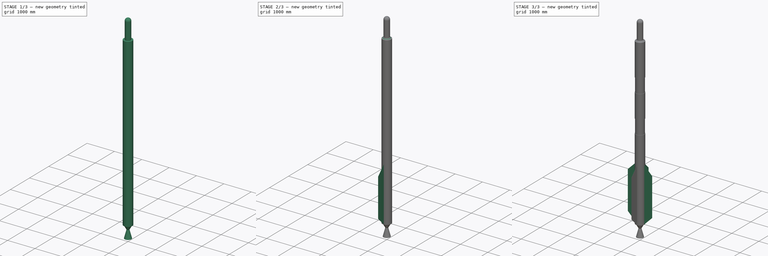
[diagram: build sequence overview — one tinted view per stage of 3, left to right]
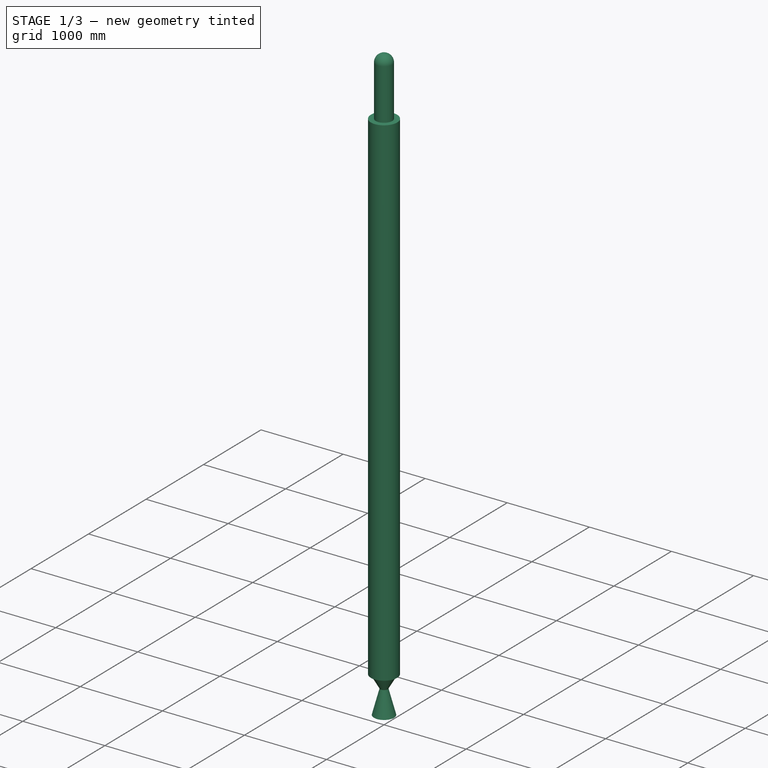
[diagram: stage 1 of 3 — iso view after this stage's code; geometry added in this stage tinted green]
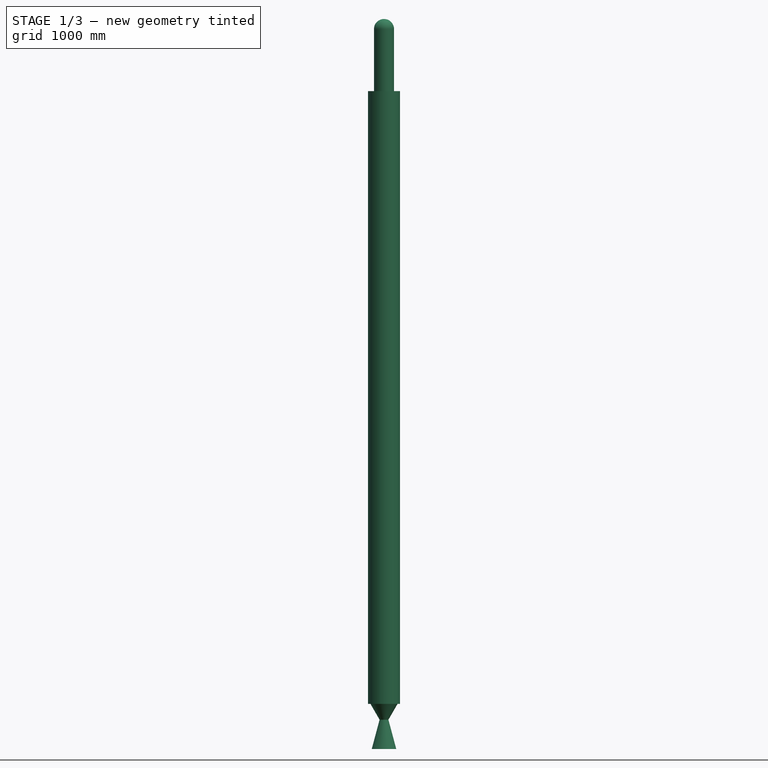
[diagram: stage 1 of 3 — front view after this stage's code; geometry added in this stage tinted green]
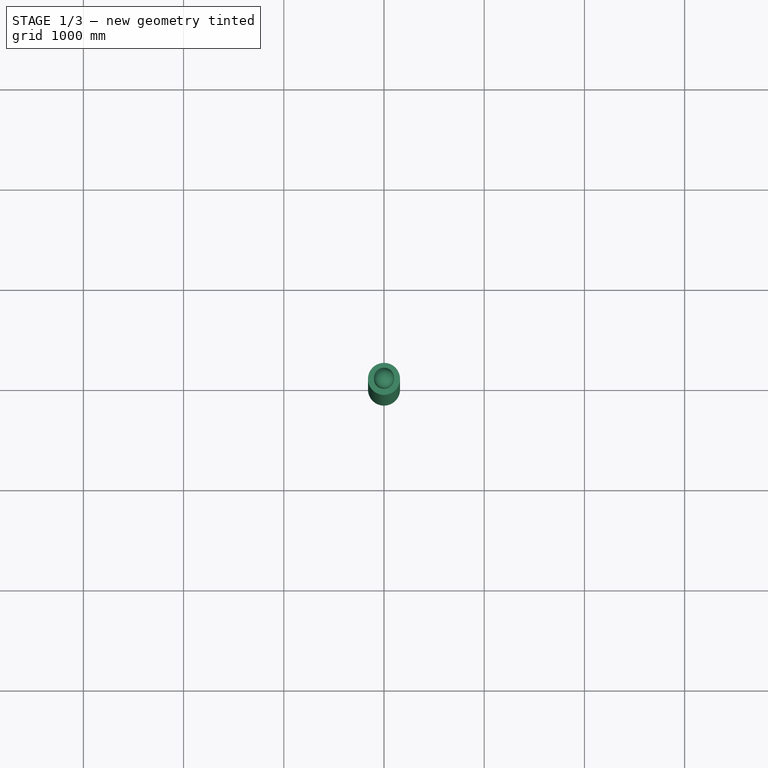
[diagram: stage 1 of 3 — top view after this stage's code; geometry added in this stage tinted green]
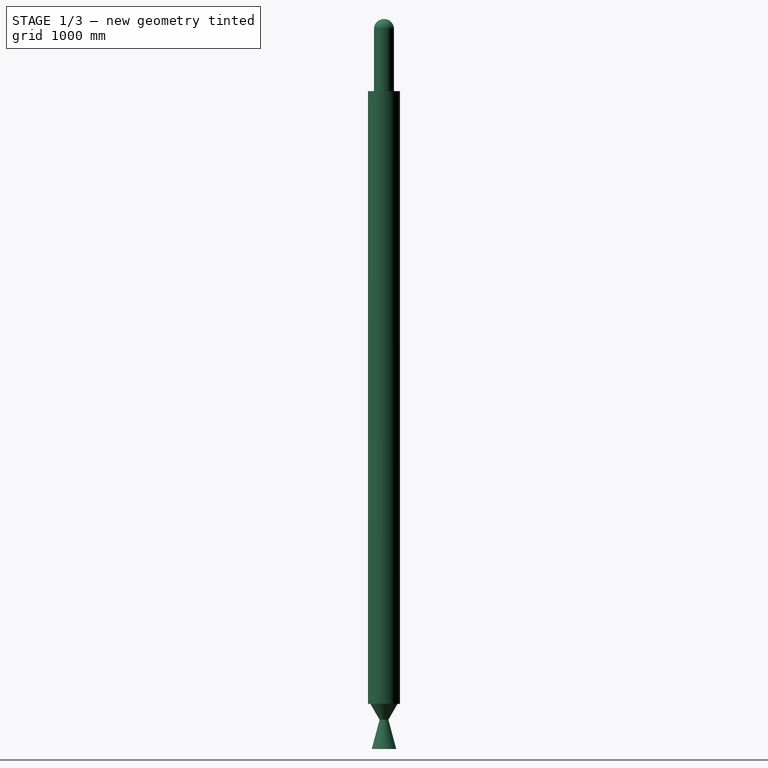
[diagram: stage 1 of 3 — right view after this stage's code; geometry added in this stage tinted green]
FCSTD DOCUMENT  (FreeCAD 0.18R16085 (Git))
Label: Body2
License: All rights reserved
LicenseURL: http://en.wikipedia.org/wiki/All_rights_reserved
objects: Sketcher::SketchObject×6, PartDesign::Pad×2, PartDesign::Revolution×2, PartDesign::Plane×2, PartDesign::Pocket×2, PartDesign::Chamfer×1, PartDesign::PolarPattern×1, PartDesign::MultiTransform×1, PartDesign::Body×1
note: 24 computed .brp shape members not serialized (recipe doc carries the construction recipe); baked Part::Feature solids carry a one-line shape summary decoded from their .brp

FEATURE [Sketcher::SketchObject] Sketch
  MapMode = 5
  Support = -> [XY_Plane]
  sketch-geometry (1):
    g0: Circle CenterX=0 CenterY=0 CenterZ=0 NormalX=0 NormalY=0 NormalZ=1 AngleXU=0 Radius=160
  constraints (2):
    c: Coincident(g-1,g0)
    c: Radius(g0) = 160
FEATURE [PartDesign::Pad] Pad
  Length = 6115
  Length2 = 100
  Profile = -> Sketch
  Refine = true
  Type = 0
FEATURE [Sketcher::SketchObject] Sketch001
  ExternalGeometry = -> [Pad]
  MapMode = 5
  Placement = pos=(0,0,0) rot=(1,0,0;1.5708rad)
  Support = -> [XZ_Plane]
  sketch-geometry (6):
    g0: ArcOfCircle CenterX=0 CenterY=6735 CenterZ=0 NormalX=0 NormalY=0 NormalZ=1 AngleXU=0 Radius=100 StartAngle=1.5708 EndAngle=3.14159
    g1: LineSegment [constr] StartX=0 StartY=6735 StartZ=0 EndX=-100 EndY=6735 EndZ=0
    g2: LineSegment StartX=-100 StartY=6735 StartZ=0 EndX=-100 EndY=6115 EndZ=0
    g3: LineSegment StartX=-100 StartY=6115 StartZ=0 EndX=0 EndY=6115 EndZ=0
    g4: LineSegment StartX=0 StartY=6115 StartZ=0 EndX=0 EndY=6735 EndZ=0
    g5: LineSegment StartX=6.1e-15 StartY=6835 StartZ=0 EndX=0 EndY=6735 EndZ=0
  constraints (18):
    c: Coincident(g1,g2)
    c: Coincident(g2,g3)
    c: Coincident(g3,g4)
    c: Coincident(g4,g1)
    c: Horizontal(g1)
    c: Horizontal(g3)
    c: Vertical(g2)
    c: Vertical(g4)
    c: Coincident(g1,g0)
    c: Tangent(g0,g2)
    c: PointOnObject(g0,g-2)
    c: Radius(g0) = 100
    c: PointOnObject(g2,g-3)
    c: PointOnObject(g1,g-2)
    c: Coincident(g5,g0)
    c: Coincident(g5,g4)
    c: Distance(g0,g-3) = 720
    c: PointOnObject(g0,g4)
FEATURE [PartDesign::Revolution] Revolution
  Angle = 360
  Axis = (0,2e-16,1)
  Base = (0,0,0)
  BaseFeature = -> Pad
  Profile = -> Sketch001
  ReferenceAxis = -> Sketch001 [V_Axis]
  Refine = true
FEATURE [Sketcher::SketchObject] Sketch002
  MapMode = 5
  Placement = pos=(0,0,0) rot=(0.57735,0.57735,0.57735;2.0944rad)
  Support = -> [YZ_Plane]
  sketch-geometry (5):
    g0: LineSegment StartX=-135 StartY=0 StartZ=0 EndX=-44 EndY=-157.617 EndZ=0
    g1: LineSegment StartX=-44 StartY=-157.617 StartZ=0 EndX=-122.344 EndY=-450 EndZ=0
    g2: LineSegment StartX=-122.344 StartY=-450 StartZ=0 EndX=0 EndY=-450 EndZ=0
    g3: LineSegment StartX=0 StartY=-450 StartZ=0 EndX=0 EndY=0 EndZ=0
    g4: LineSegment StartX=0 StartY=0 StartZ=0 EndX=-135 EndY=0 EndZ=0
  constraints (14):
    c: Horizontal(g4)
    c: Coincident(g4,g3)
    c: Coincident(g4,g0)
    c: Coincident(g0,g1)
    c: Horizontal(g2)
    c: Coincident(g2,g3)
    c: Coincident(g1,g2)
    c: Vertical(g3)
    c: Coincident(g3,g-1)
    c: Angle(g0,g4) = 1.0472
    c: Angle(g1,g3) = 0.261799
    c: Distance(g4) = 135
    c: Distance(g3) = 450
    c: Distance(g0,g3) = 44
FEATURE [PartDesign::Revolution] Revolution001
  Angle = 360
  Axis = (-2e-16,3e-16,1)
  Base = (0,0,0)
  BaseFeature = -> Revolution
  Profile = -> Sketch002
  ReferenceAxis = -> Sketch002 [V_Axis]
  Refine = true
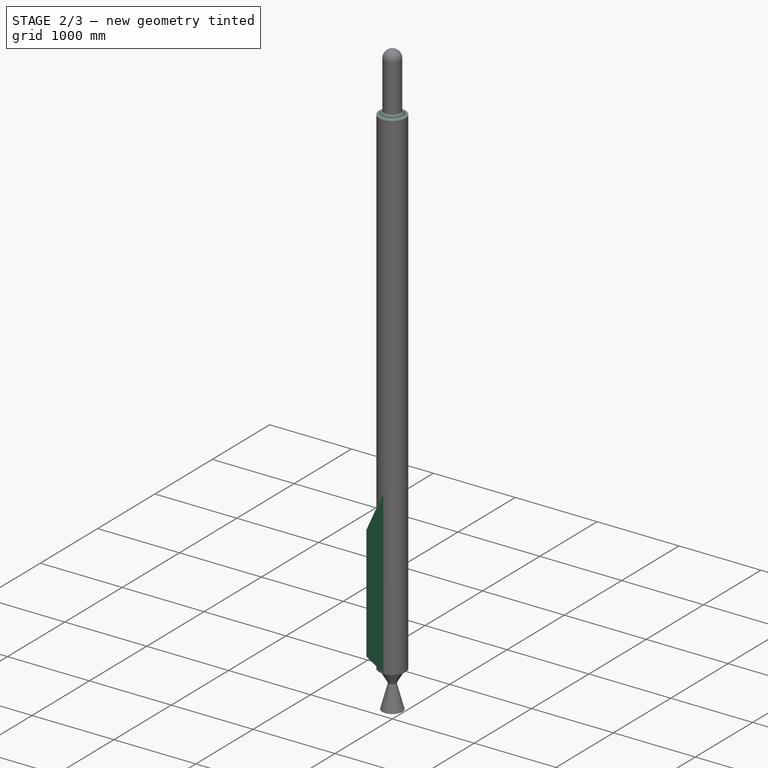
[diagram: stage 2 of 3 — iso view after this stage's code; geometry added in this stage tinted green]
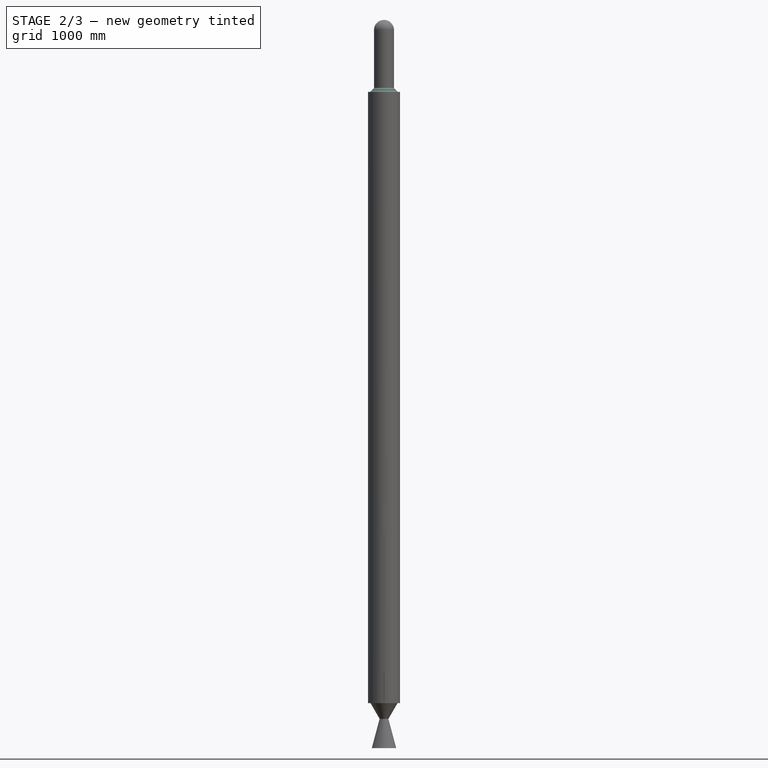
[diagram: stage 2 of 3 — front view after this stage's code; geometry added in this stage tinted green]
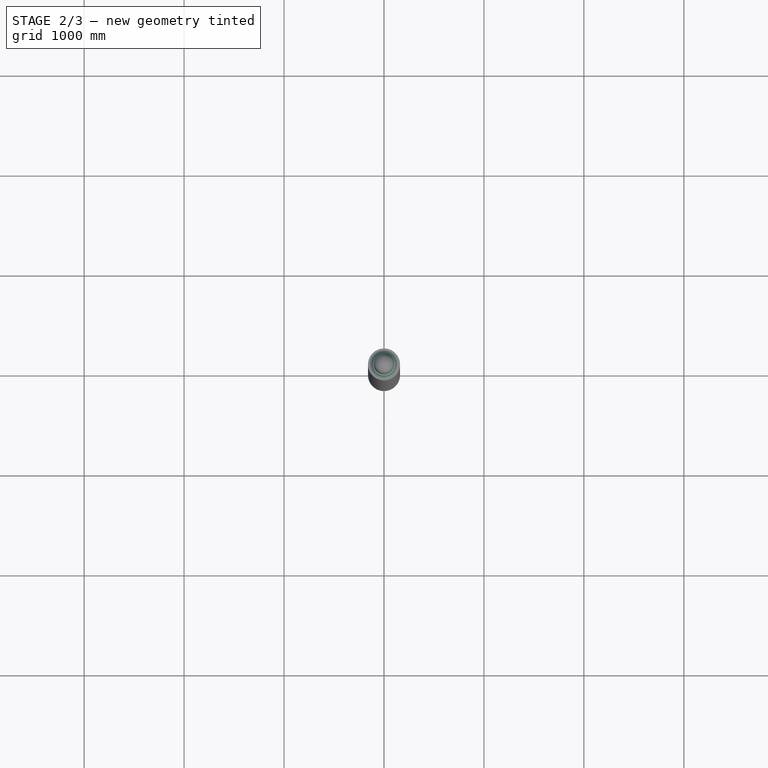
[diagram: stage 2 of 3 — top view after this stage's code; geometry added in this stage tinted green]
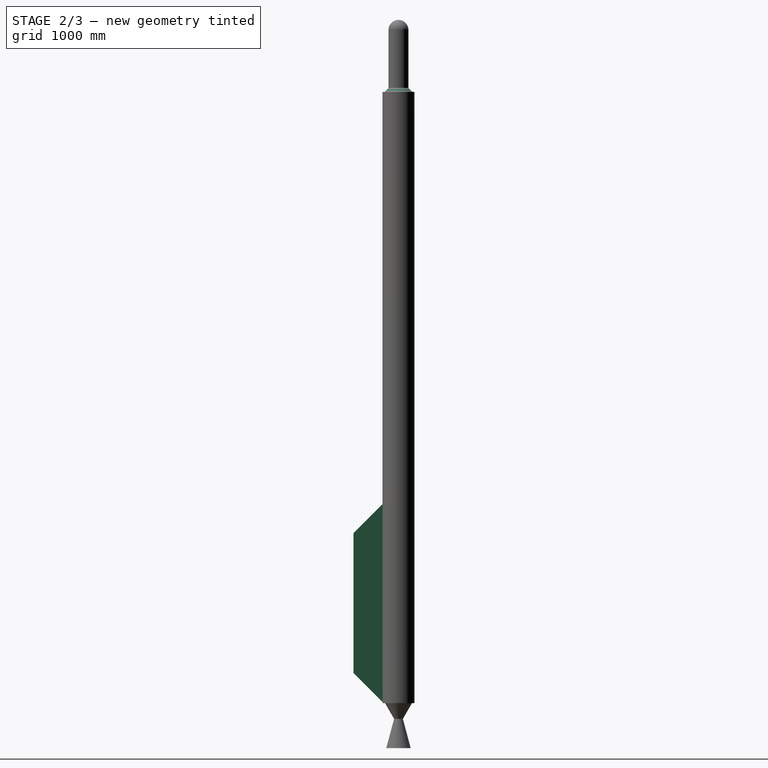
[diagram: stage 2 of 3 — right view after this stage's code; geometry added in this stage tinted green]
FEATURE [PartDesign::Chamfer] Chamfer
  Base = -> Revolution001 [Edge5]
  BaseFeature = -> Revolution001
  Size = 40
FEATURE [Sketcher::SketchObject] Sketch003
  ExternalGeometry = -> [Chamfer]
  MapMode = 5
  Placement = pos=(0,0,0) rot=(0.57735,0.57735,0.57735;2.0944rad)
  Support = -> [YZ_Plane]
  sketch-geometry (7):
    g0: LineSegment [constr] StartX=-450 StartY=2000 StartZ=0 EndX=-150 EndY=2000 EndZ=0
    g1: LineSegment StartX=-150 StartY=2000 StartZ=0 EndX=-150 EndY=0 EndZ=0
    g2: LineSegment [constr] StartX=-150 StartY=-4.16e-14 StartZ=0 EndX=-450 EndY=-4.16e-14 EndZ=0
    g3: LineSegment [constr] StartX=-450 StartY=-4.16e-14 StartZ=0 EndX=-450 EndY=2000 EndZ=0
    g4: LineSegment StartX=-150 StartY=2000 StartZ=0 EndX=-450 EndY=1700 EndZ=0
    g5: LineSegment StartX=-150 StartY=-4.16e-14 StartZ=0 EndX=-450 EndY=300 EndZ=0
    g6: LineSegment StartX=-450 StartY=1700 StartZ=0 EndX=-450 EndY=300 EndZ=0
  constraints (20):
    c: Coincident(g0,g1)
    c: Coincident(g1,g2)
    c: Coincident(g2,g3)
    c: Coincident(g3,g0)
    c: Horizontal(g0)
    c: Horizontal(g2)
    c: Vertical(g1)
    c: Vertical(g3)
    c: Distance(g3) = 2000
    c: Distance(g0) = 300
    c: PointOnObject(g1,g-3)
    c: Distance(g1,g-4) = 150
    c: Vertical(g6)
    c: Coincident(g4,g1)
    c: PointOnObject(g4,g3)
    c: Distance(g4,g0) = 300
    c: Coincident(g5,g1)
    c: Distance(g5,g2) = 300
    c: Coincident(g6,g4)
    c: Coincident(g6,g5)
FEATURE [PartDesign::Pad] Pad001
  BaseFeature = -> Chamfer
  Length = 2
  Length2 = 100
  Midplane = true
  Profile = -> Sketch003
  Refine = true
  Type = 0
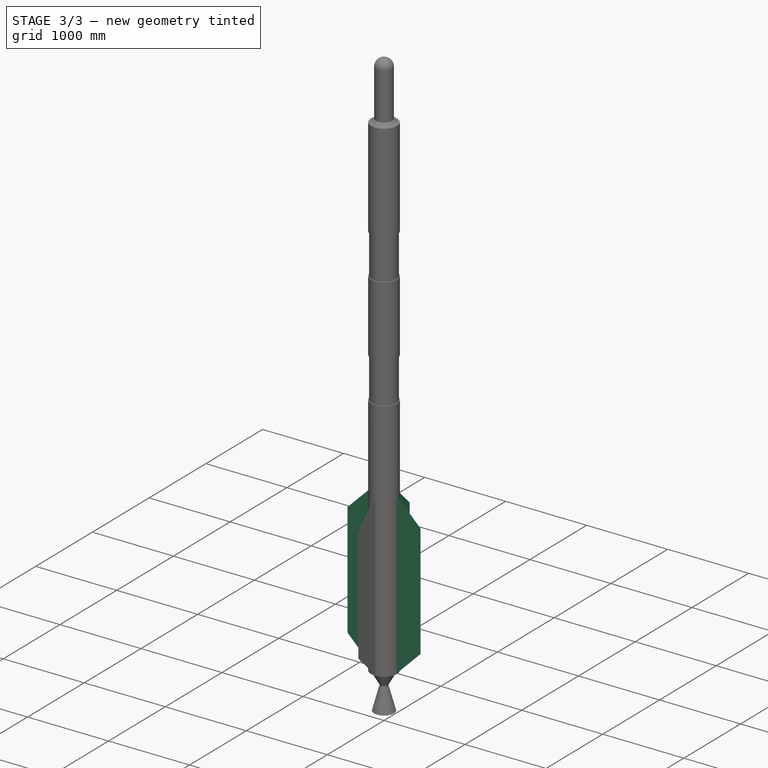
[diagram: stage 3 of 3 — iso view after this stage's code; geometry added in this stage tinted green]
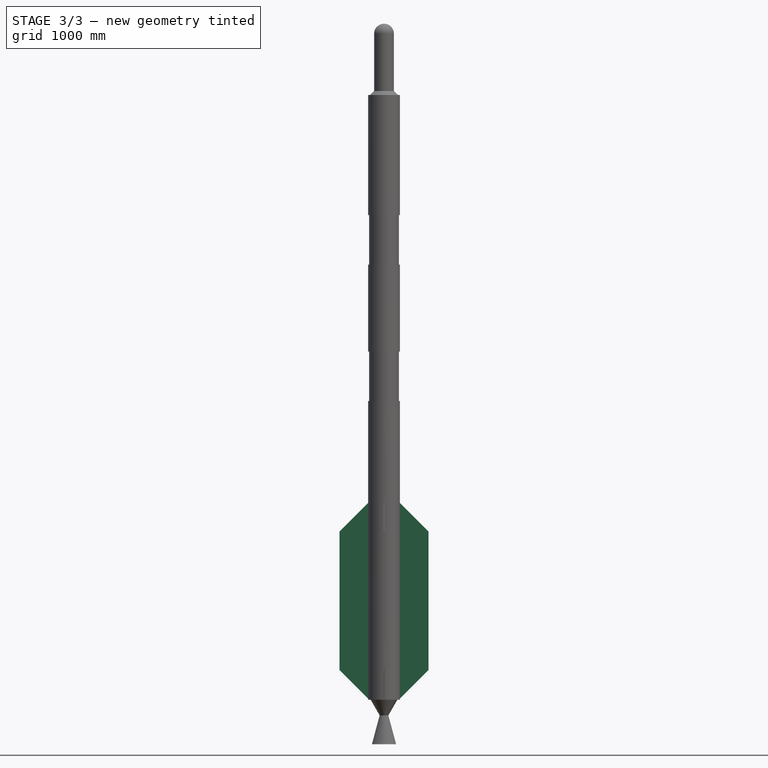
[diagram: stage 3 of 3 — front view after this stage's code; geometry added in this stage tinted green]
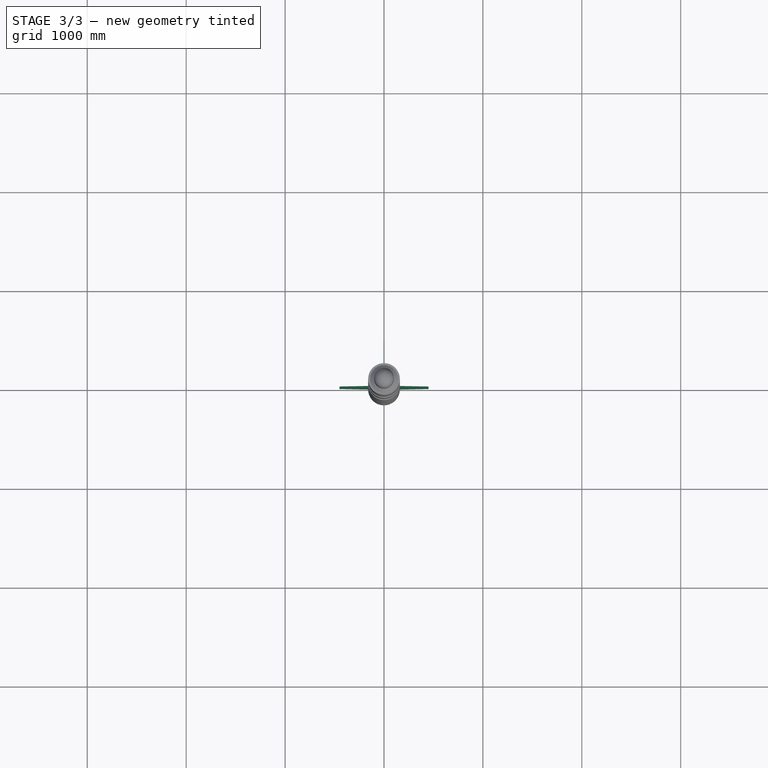
[diagram: stage 3 of 3 — top view after this stage's code; geometry added in this stage tinted green]
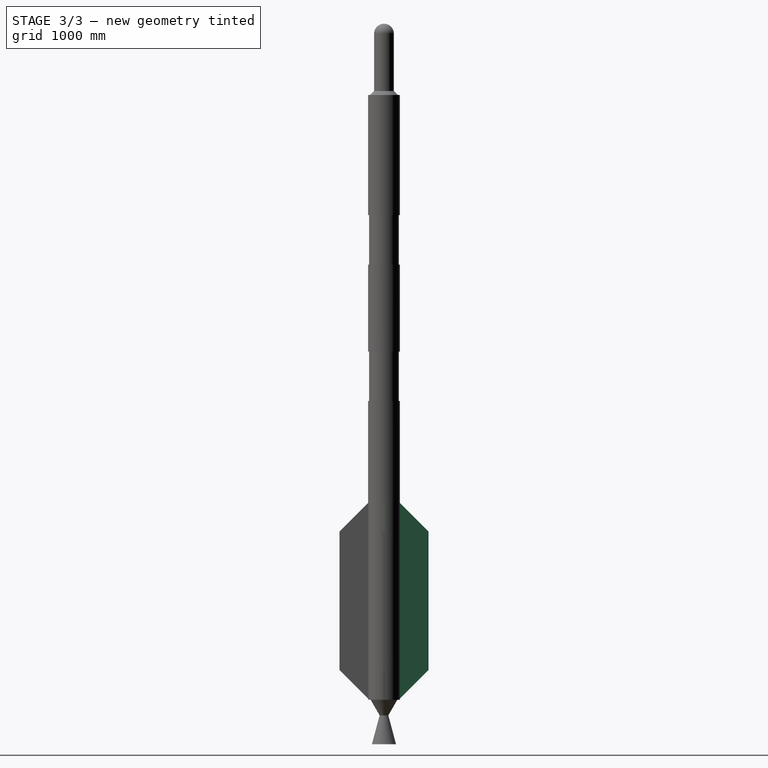
[diagram: stage 3 of 3 — right view after this stage's code; geometry added in this stage tinted green]
FEATURE [PartDesign::PolarPattern] PolarPattern
  Angle = 360
  Axis = -> Sketch003 [V_Axis]
  Occurrences = 4
  Refine = true
FEATURE [PartDesign::MultiTransform] MultiTransform
  BaseFeature = -> Pad001
  Originals = -> [Pad001]
  Refine = true
  Transformations = -> [PolarPattern]
FEATURE [PartDesign::Plane] DatumPlane
  AttachmentOffset = pos=(0,0,3470) rot=(0,0,1;0rad)
  Length = 1080
  MapMode = 5
  Placement = pos=(-6.706e-13,8.382e-13,3020) rot=(0,0,1;3.14159rad)
  ResizeMode = 0
  Support = -> [MultiTransform]
  Width = 1080
FEATURE [PartDesign::Plane] DatumPlane001
  AttachmentOffset = pos=(0,0,4850) rot=(0,0,1;0rad)
  Length = 1080
  MapMode = 5
  Placement = pos=(-9.77e-13,1.2212e-12,4400) rot=(0,0,1;3.14159rad)
  ResizeMode = 0
  Support = -> [MultiTransform]
  Width = 1080
FEATURE [Sketcher::SketchObject] Sketch004
  ExternalGeometry = -> [MultiTransform]
  MapMode = 5
  Placement = pos=(-6.706e-13,8.382e-13,3020) rot=(0,0,1;3.14159rad)
  Support = -> [DatumPlane]
  sketch-geometry (2):
    g0: Circle CenterX=0 CenterY=0 CenterZ=0 NormalX=0 NormalY=0 NormalZ=1 AngleXU=0 Radius=160
    g1: Circle CenterX=0 CenterY=0 CenterZ=0 NormalX=0 NormalY=0 NormalZ=1 AngleXU=0 Radius=150
  constraints (4):
    c: Radius(g1) = 150
    c: Coincident(g1,g0)
    c: Equal(g0,g-3)
    c: Coincident(g0,g-1)
FEATURE [PartDesign::Pocket] Pocket
  BaseFeature = -> MultiTransform
  Length = 500
  Length2 = 100
  Profile = -> Sketch004
  Refine = true
  Reversed = true
  Type = 0
FEATURE [Sketcher::SketchObject] Sketch005
  ExternalGeometry = -> [Pocket]
  MapMode = 5
  Placement = pos=(-9.77e-13,1.2212e-12,4400) rot=(0,0,1;3.14159rad)
  Support = -> [DatumPlane001]
  sketch-geometry (2):
    g0: Circle CenterX=0 CenterY=0 CenterZ=0 NormalX=0 NormalY=0 NormalZ=1 AngleXU=0 Radius=160
    g1: Circle CenterX=0 CenterY=0 CenterZ=0 NormalX=0 NormalY=0 NormalZ=1 AngleXU=0 Radius=150
  constraints (4):
    c: Radius(g1) = 150
    c: Equal(g0,g-3)
    c: Coincident(g1,g0)
    c: Coincident(g0,g-1)
FEATURE [PartDesign::Pocket] Pocket001
  BaseFeature = -> Pocket
  Length = 500
  Length2 = 100
  Profile = -> Sketch005
  Refine = true
  Reversed = true
  Type = 0
FEATURE [PartDesign::Body] Body
  Group = -> [Sketch,Pad,Sketch001,Revolution,Sketch002,Revolution001,Chamfer,Sketch003,Pad001,MultiTransform,PolarPattern,DatumPlane,DatumPlane001,Sketch004,Pocket,Sketch005,Pocket001]
  Origin = -> Origin
  Tip = -> Pocket001
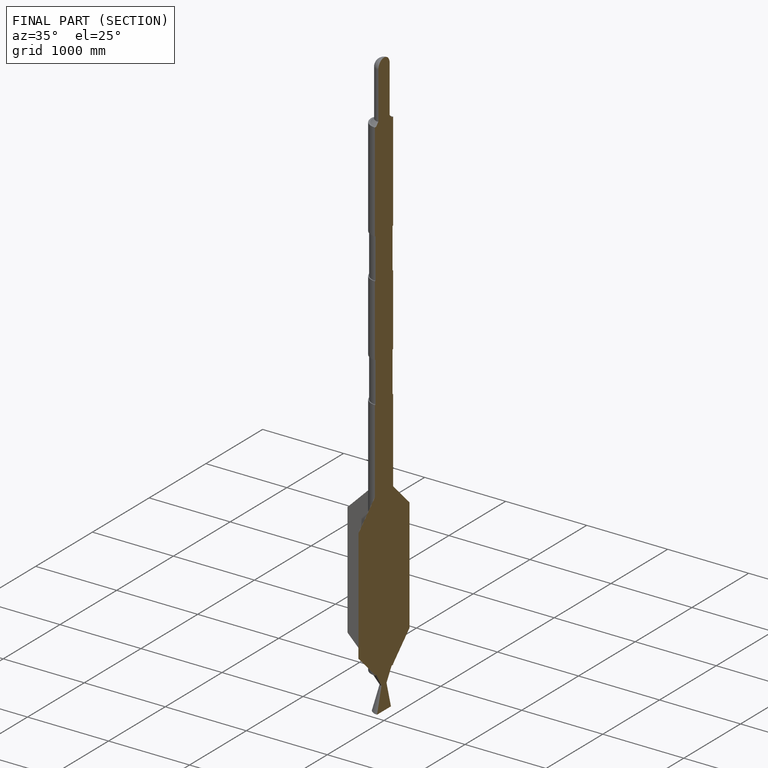
[diagram: finished part — half-section view (interior)]
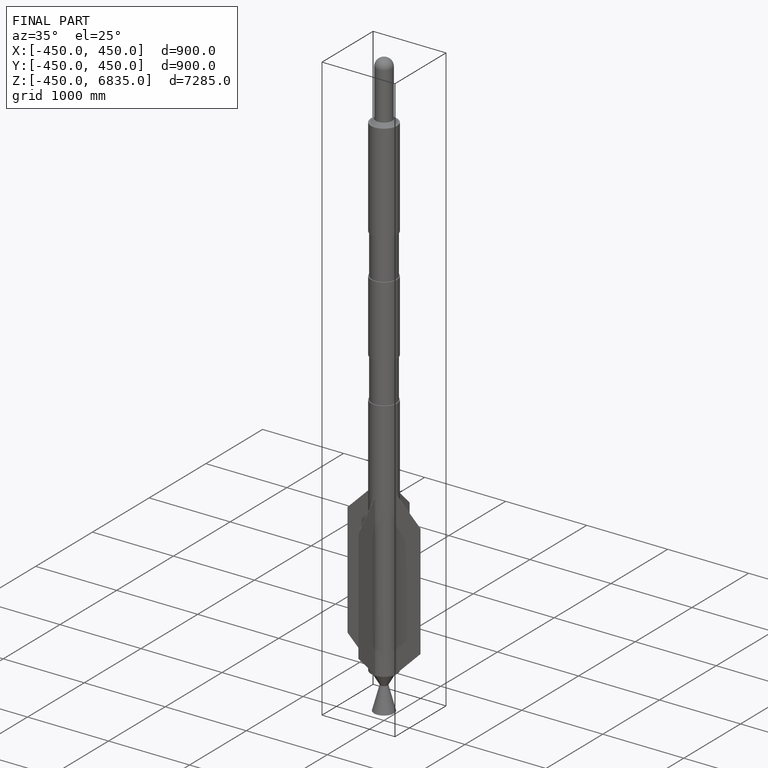
[diagram: finished part — iso view with bounding-box wireframe]
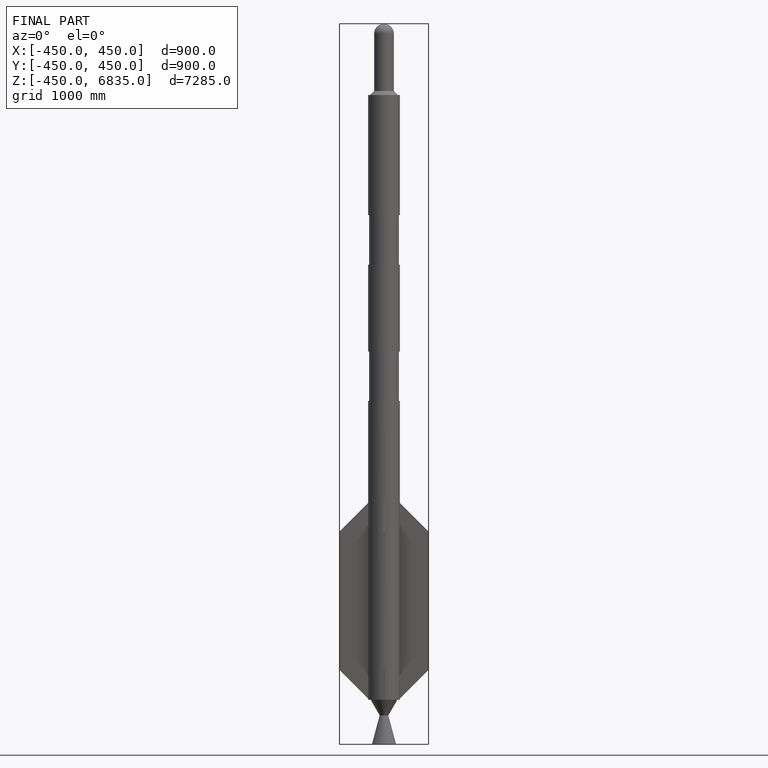
[diagram: finished part — front view with bounding-box wireframe]
